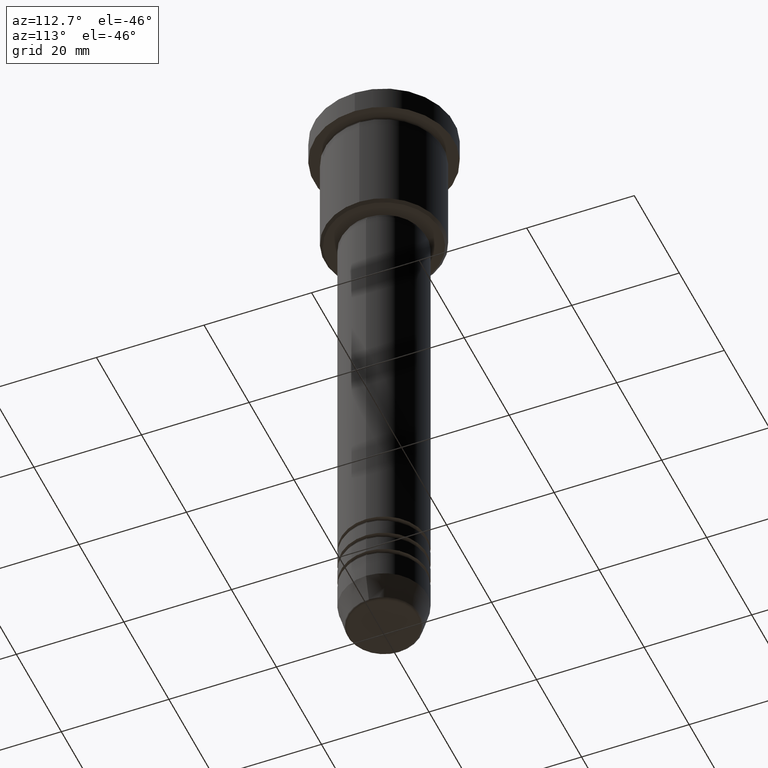
[diagram: clean part render]
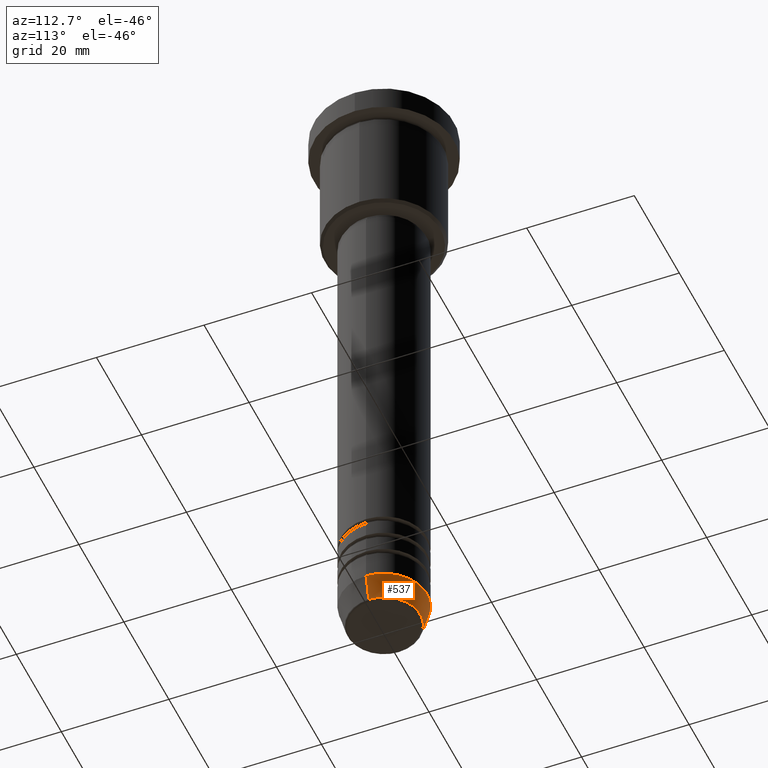
[diagram: same view with one face highlighted and labeled with its STEP entity id]
A machine part, auxiliary view. The second image highlights one B-rep face of the part: STEP entity #537.
In plain terms, the highlighted conical surface has half-angle 15 deg.
Its self-contained STEP definition (entity closure, byte-faithful):
#28 = VERTEX_POINT ( 'NONE', #66 ) ;
#34 = CARTESIAN_POINT ( 'NONE',  ( 0.000000000000000000, 0.000000000000000000, -114.9999999999999858 ) ) ;
#61 = DIRECTION ( 'NONE',  ( 0.2588190451025214611, 0.000000000000000000, 0.9659258262890679791 ) ) ;
#66 = CARTESIAN_POINT ( 'NONE',  ( 8.000000000000000000, 0.000000000000000000, -114.9999999999999858 ) ) ;
#126 = VERTEX_POINT ( 'NONE', #409 ) ;
#158 = ORIENTED_EDGE ( 'NONE', *, *, #708, .F. ) ;
#210 = DIRECTION ( 'NONE',  ( -0.000000000000000000, -0.000000000000000000, 1.000000000000000000 ) ) ;
#231 = EDGE_CURVE ( 'NONE', #126, #611, #253, .T. ) ;
#253 = CIRCLE ( 'NONE', #584, 6.759553456999436882 ) ;
#296 = CARTESIAN_POINT ( 'NONE',  ( -8.000000000000000000, 9.797174393178825657E-16, -114.9999999999999858 ) ) ;
#315 = VERTEX_POINT ( 'NONE', #406 ) ;
#333 = LINE ( 'NONE', #425, #437 ) ;
#339 = CARTESIAN_POINT ( 'NONE',  ( 0.000000000000000000, 0.000000000000000000, -114.9999999999999858 ) ) ;
#395 = DIRECTION ( 'NONE',  ( -0.000000000000000000, -0.000000000000000000, 1.000000000000000000 ) ) ;
#398 = EDGE_CURVE ( 'NONE', #28, #315, #683, .T. ) ;
#406 = CARTESIAN_POINT ( 'NONE',  ( -8.000000000000000000, 9.797174393178825657E-16, -114.9999999999999858 ) ) ;
#409 = CARTESIAN_POINT ( 'NONE',  ( 6.759553456999436882, 0.000000000000000000, -119.6294095225512564 ) ) ;
#418 = AXIS2_PLACEMENT_3D ( 'NONE', #339, #210, #679 ) ;
#425 = CARTESIAN_POINT ( 'NONE',  ( 8.000000000000000000, 0.000000000000000000, -114.9999999999999858 ) ) ;
#437 = VECTOR ( 'NONE', #61, 1000.000000000000114 ) ;
#456 = DIRECTION ( 'NONE',  ( 1.000000000000000000, 0.000000000000000000, 0.000000000000000000 ) ) ;
#537 = ADVANCED_FACE ( 'NONE', ( #1034 ), #578, .T. ) ;
#559 = DIRECTION ( 'NONE',  ( 1.000000000000000000, 0.000000000000000000, 0.000000000000000000 ) ) ;
#578 = CONICAL_SURFACE ( 'NONE', #418, 8.000000000000000000, 0.2617993877991502405 ) ;
#584 = AXIS2_PLACEMENT_3D ( 'NONE', #1174, #916, #456 ) ;
#611 = VERTEX_POINT ( 'NONE', #947 ) ;
#621 = ORIENTED_EDGE ( 'NONE', *, *, #1085, .T. ) ;
#627 = ORIENTED_EDGE ( 'NONE', *, *, #398, .F. ) ;
#679 = DIRECTION ( 'NONE',  ( 1.000000000000000000, 0.000000000000000000, 0.000000000000000000 ) ) ;
#683 = CIRCLE ( 'NONE', #827, 8.000000000000000000 ) ;
#708 = EDGE_CURVE ( 'NONE', #126, #28, #333, .T. ) ;
#782 = LINE ( 'NONE', #296, #1165 ) ;
#827 = AXIS2_PLACEMENT_3D ( 'NONE', #34, #395, #559 ) ;
#892 = ORIENTED_EDGE ( 'NONE', *, *, #231, .T. ) ;
#908 = EDGE_LOOP ( 'NONE', ( #892, #621, #627, #158 ) ) ;
#916 = DIRECTION ( 'NONE',  ( -0.000000000000000000, -0.000000000000000000, 1.000000000000000000 ) ) ;
#947 = CARTESIAN_POINT ( 'NONE',  ( -6.759553456999437770, 9.037619948979306213E-16, -119.6294095225512564 ) ) ;
#1034 = FACE_OUTER_BOUND ( 'NONE', #908, .T. ) ;
#1085 = EDGE_CURVE ( 'NONE', #611, #315, #782, .T. ) ;
#1131 = DIRECTION ( 'NONE',  ( -0.2588190451025214611, 3.169619151431774186E-17, 0.9659258262890679791 ) ) ;
#1165 = VECTOR ( 'NONE', #1131, 1000.000000000000114 ) ;
#1174 = CARTESIAN_POINT ( 'NONE',  ( 0.000000000000000000, 0.000000000000000000, -119.6294095225512564 ) ) ;